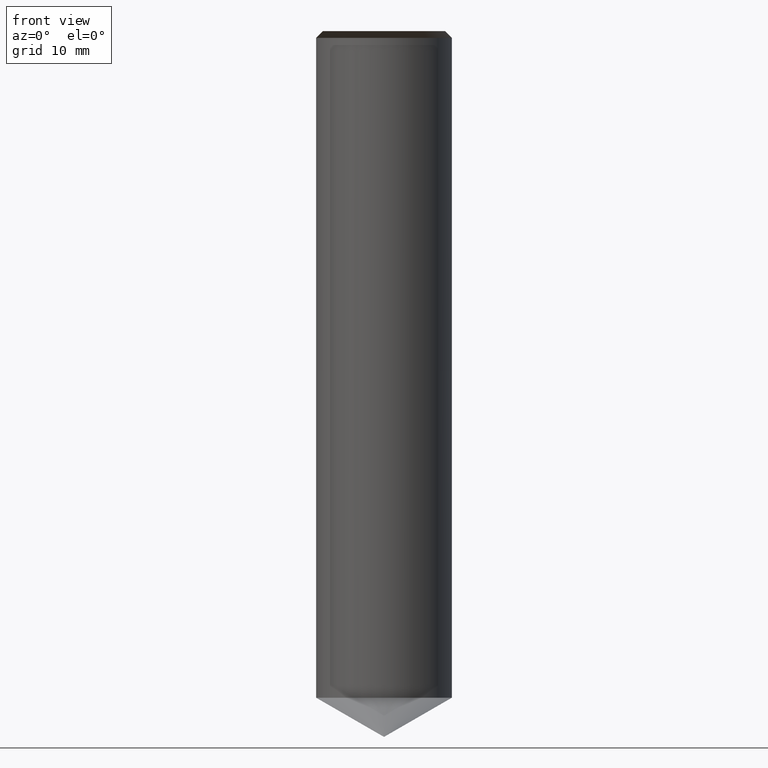
[diagram: clean part render]
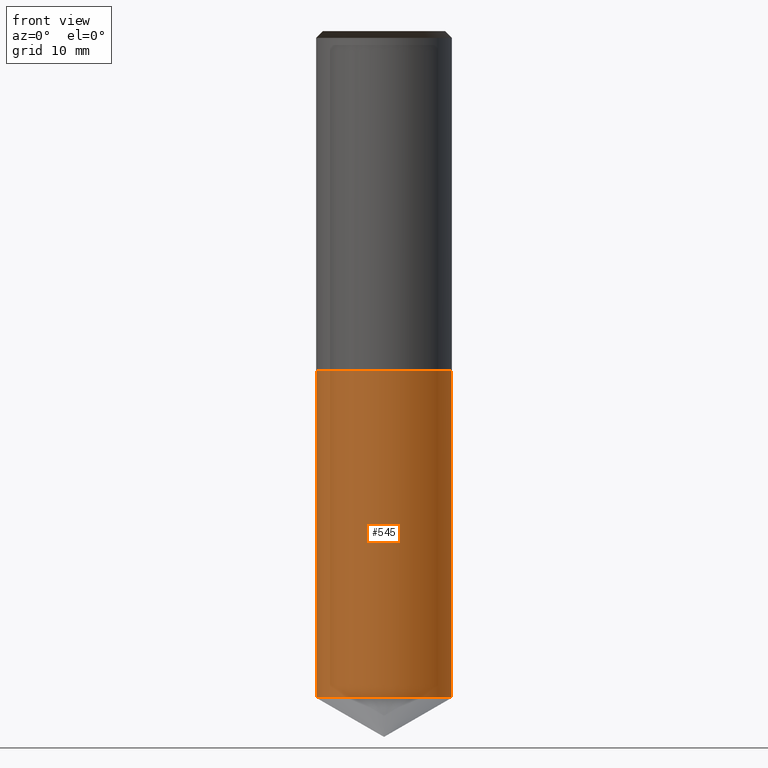
[diagram: same view with one face highlighted and labeled with its STEP entity id]
A machine part, front view. The second image highlights one B-rep face of the part: STEP entity #545.
In plain terms, the highlighted face is a freeform B-spline surface patch.
Its self-contained STEP definition (entity closure, byte-faithful):
#266=CARTESIAN_POINT('',(10.0,0.0,-48.225));
#270=CARTESIAN_POINT('',(-10.0,0.0,-48.225));
#275=CARTESIAN_POINT('',(-10.0,-10.0,-48.225));
#276=CARTESIAN_POINT('',(0.0,-10.0,-48.225));
#277=CARTESIAN_POINT('',(10.0,-10.0,-48.225));
#278=CARTESIAN_POINT('',(10.0,0.0,0.0));
#282=CARTESIAN_POINT('',(-10.0,0.0,0.0));
#294=CARTESIAN_POINT('',(-10.0,-10.0,0.0));
#295=CARTESIAN_POINT('',(0.0,-10.0,0.0));
#296=CARTESIAN_POINT('',(10.0,-10.0,0.0));
#526=(
BOUNDED_SURFACE()
B_SPLINE_SURFACE(1,2,(
(#270,#275,#276,#277,#266),
(#282,#294,#295,#296,#278)
), .UNSPECIFIED.,.F.,.F.,.F.)
B_SPLINE_SURFACE_WITH_KNOTS((2,2),(3,2,3),(
0.0,1.0),(
0.0,0.5,1.0), .UNSPECIFIED.)
GEOMETRIC_REPRESENTATION_ITEM()
RATIONAL_B_SPLINE_SURFACE(((1.0,0.707106781187,1.0,0.707106781187,1.0),
(1.0,0.707106781187,1.0,0.707106781187,1.0)
))
REPRESENTATION_ITEM('')
SURFACE()
);
#527=(
BOUNDED_CURVE()
B_SPLINE_CURVE(1,(#282,#270),.UNSPECIFIED.,.F.,.F.)
B_SPLINE_CURVE_WITH_KNOTS((2,2),
(0.0,1.0),.UNSPECIFIED.)
CURVE()
GEOMETRIC_REPRESENTATION_ITEM()
RATIONAL_B_SPLINE_CURVE((1.0,1.0))
REPRESENTATION_ITEM('')
);
#528=(
BOUNDED_CURVE()
B_SPLINE_CURVE(2,(#270,#275,#276,#277,#266),.UNSPECIFIED.,.F.,.F.)
B_SPLINE_CURVE_WITH_KNOTS((3,2,3),
(0.0,0.5,1.0),.UNSPECIFIED.)
CURVE()
GEOMETRIC_REPRESENTATION_ITEM()
RATIONAL_B_SPLINE_CURVE((1.0,0.707106781187,1.0,0.707106781187,1.0))
REPRESENTATION_ITEM('')
);
#529=(
BOUNDED_CURVE()
B_SPLINE_CURVE(1,(#266,#278),.UNSPECIFIED.,.F.,.F.)
B_SPLINE_CURVE_WITH_KNOTS((2,2),
(0.0,1.0),.UNSPECIFIED.)
CURVE()
GEOMETRIC_REPRESENTATION_ITEM()
RATIONAL_B_SPLINE_CURVE((1.0,1.0))
REPRESENTATION_ITEM('')
);
#530=(
BOUNDED_CURVE()
B_SPLINE_CURVE(2,(#278,#296,#295,#294,#282),.UNSPECIFIED.,.F.,.F.)
B_SPLINE_CURVE_WITH_KNOTS((3,2,3),
(0.0,0.5,1.0),.UNSPECIFIED.)
CURVE()
GEOMETRIC_REPRESENTATION_ITEM()
RATIONAL_B_SPLINE_CURVE((1.0,0.707106781187,1.0,0.707106781187,1.0))
REPRESENTATION_ITEM('')
);
#531=VERTEX_POINT('',#266);
#532=VERTEX_POINT('',#270);
#533=VERTEX_POINT('',#278);
#534=VERTEX_POINT('',#282);
#535=EDGE_CURVE('',#534,#532,#527,.T.);
#536=EDGE_CURVE('',#532,#531,#528,.T.);
#537=EDGE_CURVE('',#531,#533,#529,.T.);
#538=EDGE_CURVE('',#533,#534,#530,.T.);
#539=ORIENTED_EDGE('',*,*,#535,.T.);
#540=ORIENTED_EDGE('',*,*,#536,.T.);
#541=ORIENTED_EDGE('',*,*,#537,.T.);
#542=ORIENTED_EDGE('',*,*,#538,.T.);
#543=EDGE_LOOP('',(#539,#540,#541,#542));
#544=FACE_OUTER_BOUND('',#543,.T.);
#545=ADVANCED_FACE('',(#544),#526,.T.);